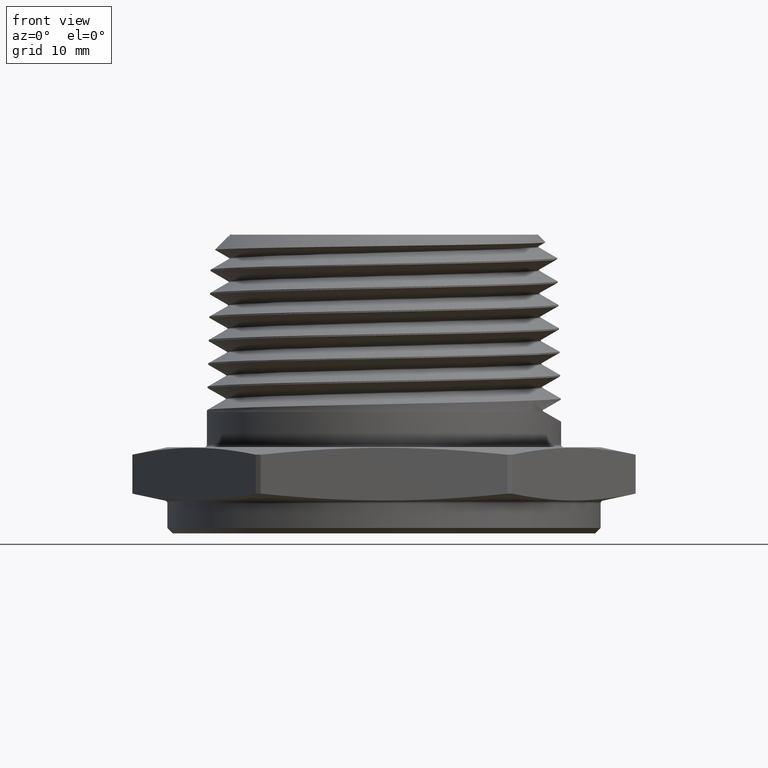
[diagram: clean part render]
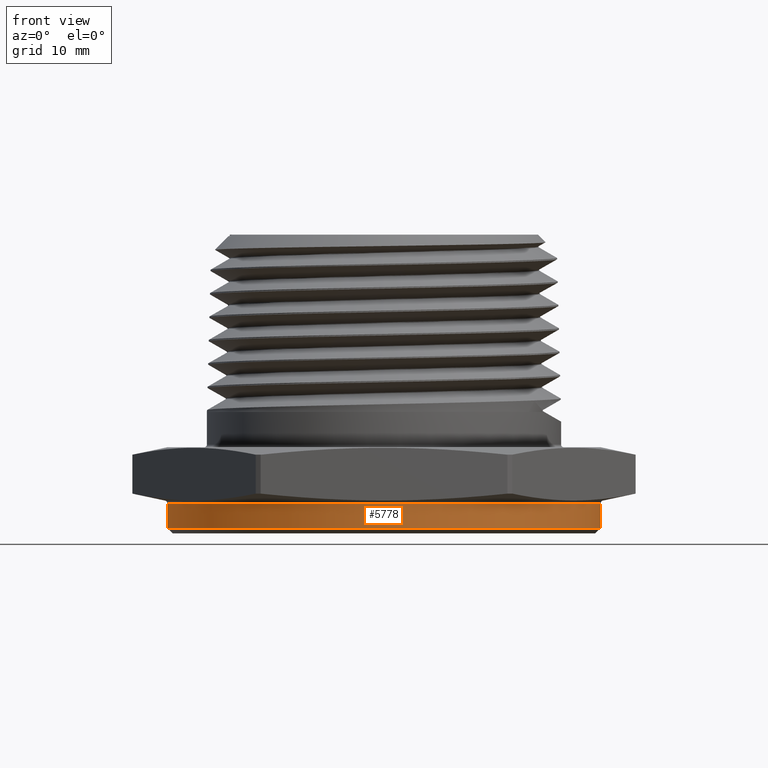
[diagram: same view with one face highlighted and labeled with its STEP entity id]
A machine part, front view. The second image highlights one B-rep face of the part: STEP entity #5778.
In plain terms, the highlighted cylindrical surface (partial cylindrical patch) has radius 20.447 mm, axis along (-0, -0, 1).
Its self-contained STEP definition (entity closure, byte-faithful):
#4 = CIRCLE ( 'NONE', #3932, 0.8049999999999998300 ) ;
#51 = LINE ( 'NONE', #3571, #52 ) ;
#52 = VECTOR ( 'NONE', #3572, 39.37007874015748100 ) ;
#88 = LINE ( 'NONE', #5458, #90 ) ;
#90 = VECTOR ( 'NONE', #5459, 39.37007874015748100 ) ;
#144 = CIRCLE ( 'NONE', #3980, 0.8049999999999998300 ) ;
#171 = FACE_OUTER_BOUND ( 'NONE', #1752, .T. ) ;
#174 = CYLINDRICAL_SURFACE ( 'NONE', #1516, 0.8049999999999998300 ) ;
#1516 = AXIS2_PLACEMENT_3D ( 'NONE', #4505, #4501, #4502 ) ;
#1752 = EDGE_LOOP ( 'NONE', ( #4752, #4749, #4746, #4743 ) ) ;
#3571 = CARTESIAN_POINT ( 'NONE',  ( -0.8049999999999998300, 9.858406733136190000E-017, -0.1200000000000000000 ) ) ;
#3572 = DIRECTION ( 'NONE',  ( -0.0000000000000000000, -0.0000000000000000000, 1.000000000000000000 ) ) ;
#3763 = EDGE_CURVE ( 'NONE', #4804, #4832, #4, .T. ) ;
#3807 = EDGE_CURVE ( 'NONE', #4758, #4832, #51, .T. ) ;
#3849 = EDGE_CURVE ( 'NONE', #4757, #4804, #88, .T. ) ;
#3911 = EDGE_CURVE ( 'NONE', #4758, #4757, #144, .T. ) ;
#3932 = AXIS2_PLACEMENT_3D ( 'NONE', #5709, #5708, #5707 ) ;
#3980 = AXIS2_PLACEMENT_3D ( 'NONE', #6628, #6629, #6630 ) ;
#4375 = CARTESIAN_POINT ( 'NONE',  ( 0.8049999999999998300, 0.0000000000000000000, -0.008097840331950368500 ) ) ;
#4384 = CARTESIAN_POINT ( 'NONE',  ( -0.8049999999999998300, 9.858406733136190000E-017, -0.008097840331950267900 ) ) ;
#4501 = DIRECTION ( 'NONE',  ( -0.0000000000000000000, -0.0000000000000000000, 1.000000000000000000 ) ) ;
#4502 = DIRECTION ( 'NONE',  ( 1.000000000000000000, 0.0000000000000000000, 0.0000000000000000000 ) ) ;
#4505 = CARTESIAN_POINT ( 'NONE',  ( 0.0000000000000000000, 0.0000000000000000000, -0.1200000000000000000 ) ) ;
#4743 = ORIENTED_EDGE ( 'NONE', *, *, #3763, .T. ) ;
#4746 = ORIENTED_EDGE ( 'NONE', *, *, #3849, .T. ) ;
#4749 = ORIENTED_EDGE ( 'NONE', *, *, #3911, .T. ) ;
#4752 = ORIENTED_EDGE ( 'NONE', *, *, #3807, .F. ) ;
#4757 = VERTEX_POINT ( 'NONE', #6596 ) ;
#4758 = VERTEX_POINT ( 'NONE', #6597 ) ;
#4804 = VERTEX_POINT ( 'NONE', #4375 ) ;
#4832 = VERTEX_POINT ( 'NONE', #4384 ) ;
#5458 = CARTESIAN_POINT ( 'NONE',  ( 0.8049999999999998300, 0.0000000000000000000, -0.1200000000000000000 ) ) ;
#5459 = DIRECTION ( 'NONE',  ( -0.0000000000000000000, -0.0000000000000000000, 1.000000000000000000 ) ) ;
#5707 = DIRECTION ( 'NONE',  ( -1.000000000000000000, 0.0000000000000000000, 6.230437485550291600E-017 ) ) ;
#5708 = DIRECTION ( 'NONE',  ( -6.274932739761922300E-017, -0.0000000000000000000, -1.000000000000000000 ) ) ;
#5709 = CARTESIAN_POINT ( 'NONE',  ( 0.0000000000000000000, 0.0000000000000000000, -0.008097840331950318200 ) ) ;
#5778 = ADVANCED_FACE ( 'NONE', ( #171 ), #174, .T. ) ;
#6596 = CARTESIAN_POINT ( 'NONE',  ( 0.8049999999999998300, 0.0000000000000000000, -0.1000000000000014500 ) ) ;
#6597 = CARTESIAN_POINT ( 'NONE',  ( -0.8049999999999998300, 9.858406733136190000E-017, -0.1000000000000014500 ) ) ;
#6628 = CARTESIAN_POINT ( 'NONE',  ( 0.0000000000000000000, 0.0000000000000000000, -0.1000000000000014500 ) ) ;
#6629 = DIRECTION ( 'NONE',  ( 0.0000000000000000000, 0.0000000000000000000, 1.000000000000000000 ) ) ;
#6630 = DIRECTION ( 'NONE',  ( -1.000000000000000000, 0.0000000000000000000, 0.0000000000000000000 ) ) ;